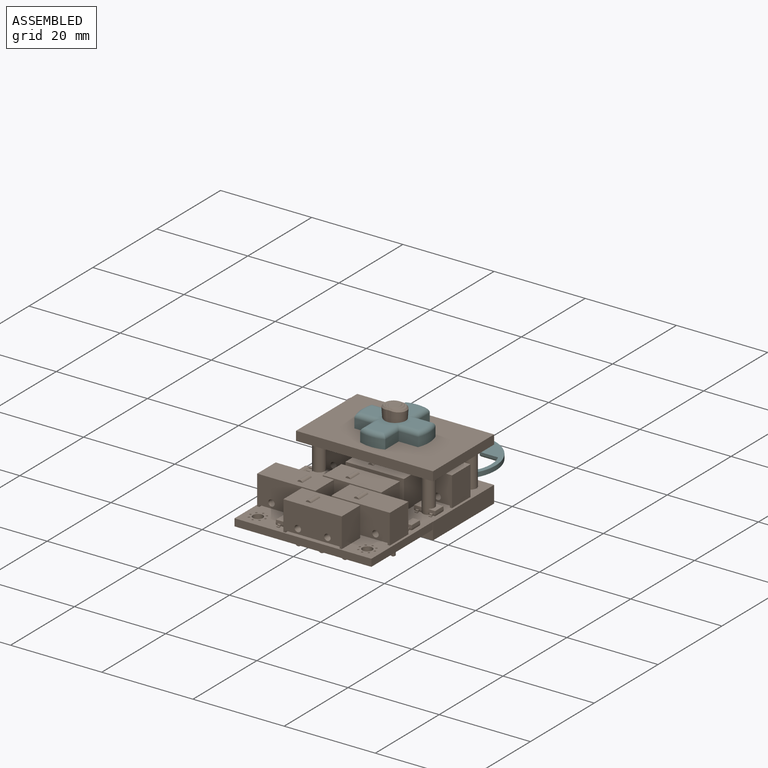
[diagram: assembled view]
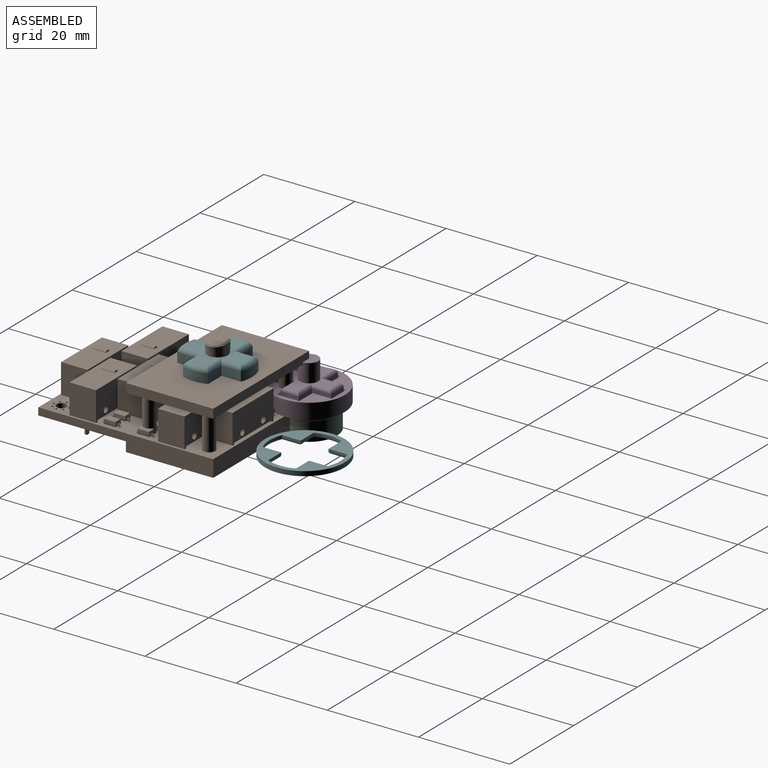
[diagram: assembled view, second angle]
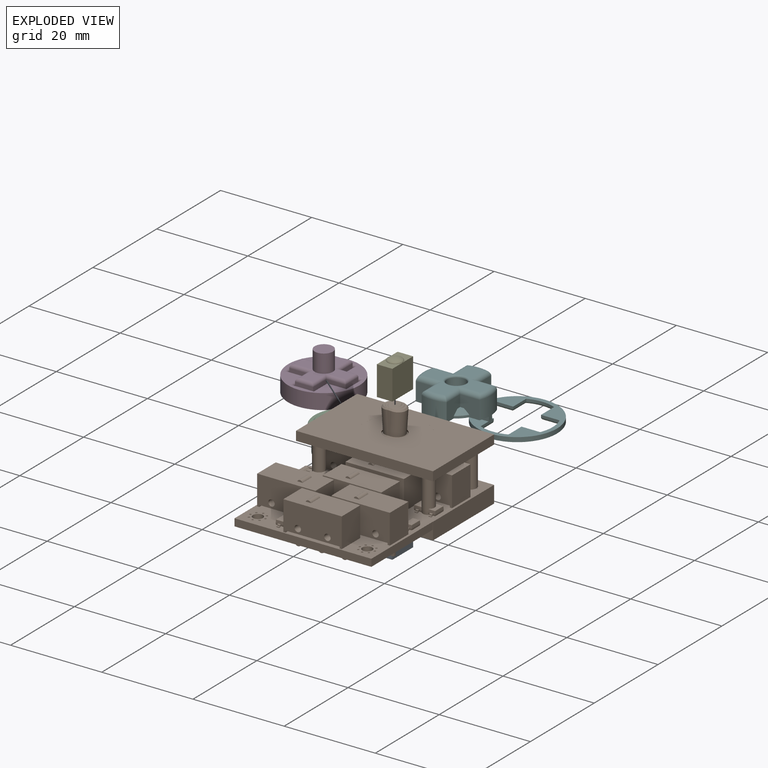
[diagram: exploded view]
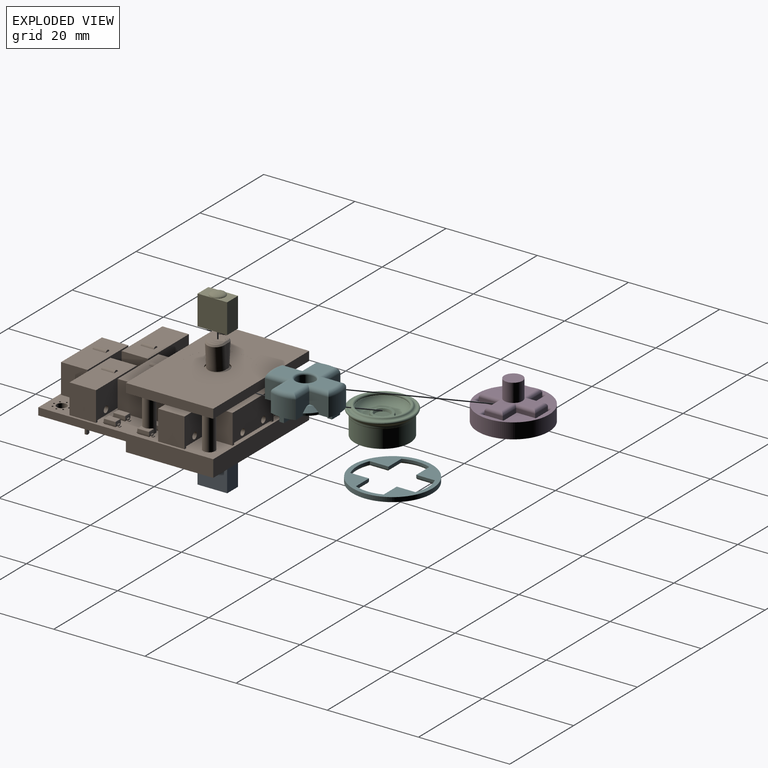
[diagram: exploded view, second angle]
FCSTD DOCUMENT  (FreeCAD 1.0RUnknown)
Label: caps
License: All rights reserved
LicenseURL: https://en.wikipedia.org/wiki/All_rights_reserved
objects: Sketcher::SketchObject×33, PartDesign::Pad×18, App::Link×13, PartDesign::Body×12, App::Part×12, PartDesign::Fillet×7, PartDesign::Pocket×6, PartDesign::Plane×5, PartDesign::SubShapeBinder×5, PartDesign::Chamfer×4, Part::Sphere×3, PartDesign::Revolution×2, Part::Cut×2, PartDesign::ShapeBinder×2, Part::Feature×2, PartDesign::AdditiveLoft×1, PartDesign::SubtractiveLoft×1, Part::Ellipsoid×1, PartDesign::FeatureBase×1
note: 217 computed .brp shape members not serialized (recipe doc carries the construction recipe); baked Part::Feature solids carry a one-line shape summary decoded from their .brp
EXTERNAL_REF file=thumb-cluster.FCStd obj=Body002
EXTERNAL_REF file=thumb-cluster.FCStd obj=Board_58ce
EXTERNAL_REF file=vars.FCStd obj=VarSet

FEATURE [Sketcher::SketchObject] Sketch001
  ArcFitTolerance = 1e-06
  FullyConstrained = false
  MakeInternals = false
  MapMode = 5
  Placement = pos=(0,0,0) rot=(1,0,0;1.5708rad)
  sketch-geometry (14):
    g0: LineSegment StartX=1.69043 StartY=8 StartZ=0 EndX=0 EndY=8 EndZ=0
    g1: GeomPoint [constr] X=2 Y=1.6 Z=0
    g2: ArcOfCircle [constr] CenterX=1.69043 CenterY=7.6871 CenterZ=0 NormalX=0 NormalY=0 NormalZ=1 AngleXU=0 Radius=0.312896 StartAngle=6.27442 EndAngle=7.85398
    g3: LineSegment StartX=2 StartY=7.65795 StartZ=0 EndX=1.69043 EndY=8 EndZ=0
    g4: LineSegment StartX=0 StartY=8 StartZ=0 EndX=0 EndY=1.2 EndZ=0
    g5: LineSegment StartX=2 StartY=7.65795 StartZ=0 EndX=2 EndY=2.62488 EndZ=0
    g6: LineSegment StartX=5.72458 StartY=1 StartZ=0 EndX=3.14484 EndY=1 EndZ=0
    g7: ArcOfCircle CenterX=0 CenterY=0 CenterZ=0 NormalX=0 NormalY=0 NormalZ=1 AngleXU=0 Radius=3.3 StartAngle=0.307871 EndAngle=0.919698
    g8: LineSegment StartX=6.7 StartY=0.024579 StartZ=0 EndX=6.7 EndY=-1e-16 EndZ=0
    g9: ArcOfCircle CenterX=5.72458 CenterY=0.024579 CenterZ=0 NormalX=0 NormalY=0 NormalZ=1 AngleXU=0 Radius=0.975421 StartAngle=0 EndAngle=1.5708
    g10: GeomPoint [constr] X=6.7 Y=1 Z=0
    g11: LineSegment StartX=6.7 StartY=-1e-16 StartZ=0 EndX=1.2 EndY=-1e-16 EndZ=0
    g12: ArcOfCircle CenterX=0 CenterY=-1e-16 CenterZ=0 NormalX=0 NormalY=0 NormalZ=1 AngleXU=0 Radius=1.2 StartAngle=0 EndAngle=1.5708
    g13: LineSegment [constr] StartX=1.2 StartY=-1e-16 StartZ=0 EndX=0 EndY=-1e-16 EndZ=0
  constraints (32):
    c: PointOnObject(g0,g-2)
    c: Horizontal(g0)
    c: Distance(g0,g-1) = 8
    c: Tangent(g0,g2) = -1.5708
    c: Coincident(g3,g0)
    c: Coincident(g0,g4)
    c: Vertical(g4)
    c: Distance(g8,g-2) = 6.7
    c: Coincident(g5,g3)
    c: Vertical(g5)
    c: Horizontal(g6)
    c: Coincident(g7,g5)
    c: Coincident(g7,g6)
    c: Radius(g7) = 3.3
    c: Distance(g4,g5) = 2
    c: Vertical(g8)
    c: PointOnObject(g10,g6)
    c: PointOnObject(g10,g8)
    c: Tangent(g6,g9) = -1.5708
    c: Tangent(g8,g9) = 1.5708
    c: Coincident(g11,g8)
    c: PointOnObject(g12,g-2)
    c: Horizontal(g11)
    c: Radius(g12) = 1.2
    c: Distance(g6,g-1) = 1
    c: Distance(g11,g6) = 1
    c: Coincident(g4,g12)
    c: Coincident(g11,g12)
    c: Coincident(g13,g11)
    c: Coincident(g13,g12)
    c: Horizontal(g13)
    c: Coincident(g7,g-1)
FEATURE [PartDesign::Revolution] Revolution
  Angle = 360
  Angle2 = 60
  Axis = (0,2e-16,1)
  Base = (0,0,0)
  Placement = pos=(0,0,0) rot=(1,0,0;1.5708rad)
  Profile = -> Sketch001
  ReferenceAxis = -> Sketch001 [V_Axis]
  Refine = true
  Reversed = true
  Suppressed = false
  Type = 0
FEATURE [Sketcher::SketchObject] Sketch002
  ArcFitTolerance = 1e-06
  AttachmentSupport = -> [XZ_Plane006]
  FullyConstrained = true
  MakeInternals = false
  MapMode = 5
  Placement = pos=(0,0,0) rot=(1,0,0;1.5708rad)
  sketch-geometry (4):
    g0: LineSegment StartX=3.16228 StartY=1.5 StartZ=0 EndX=7 EndY=1.5 EndZ=0
    g1: ArcOfCircle CenterX=0 CenterY=0 CenterZ=0 NormalX=0 NormalY=0 NormalZ=1 AngleXU=0 Radius=3.5 StartAngle=0.442911 EndAngle=0.795603
    g2: LineSegment StartX=7 StartY=2.5 StartZ=0 EndX=7 EndY=1.5 EndZ=0
    g3: LineSegment StartX=7 StartY=2.5 StartZ=0 EndX=2.44949 EndY=2.5 EndZ=0
  constraints (12):
    c: Distance(g2,g-2) = 7
    c: Coincident(g1,g-1)
    c: Radius(g1) = 3.5
    c: Coincident(g2,g0)
    c: Vertical(g2)
    c: DistanceY(g2,g2) = 1
    c: Horizontal(g0)
    c: Distance(g-1,g0) = 1.5
    c: Coincident(g3,g2)
    c: Horizontal(g3)
    c: Coincident(g3,g1)
    c: Coincident(g1,g0)
FEATURE [PartDesign::Revolution] Revolution001
  Angle = 360
  Angle2 = 60
  Axis = (0,2e-16,1)
  Base = (0,0,0)
  Placement = pos=(0,0,0) rot=(1,0,0;1.5708rad)
  Profile = -> Sketch002
  ReferenceAxis = -> Sketch002 [V_Axis]
  Refine = true
  Reversed = true
  Suppressed = false
  Type = 0
FEATURE [Sketcher::SketchObject] Sketch
  ArcFitTolerance = 1e-06
  AttachmentSupport = -> [XY_Plane]
  FullyConstrained = true
  MakeInternals = false
  MapMode = 5
  sketch-geometry (1):
    g0: Circle CenterX=0 CenterY=0 CenterZ=0 NormalX=0 NormalY=0 NormalZ=1 AngleXU=0 Radius=5.85
  constraints (2):
    c: Diameter(g0) = 11.7
    c: Coincident(g0,g-1)
FEATURE [PartDesign::Pad] Pad
  Direction = (0,0,1)
  Length = 3.5
  Length2 = 10
  Profile = -> Sketch
  ReferenceAxis = -> Sketch [N_Axis]
  Refine = true
  Suppressed = false
  Type = 0
FEATURE [Sketcher::SketchObject] Sketch003
  ArcFitTolerance = 1e-06
  AttachmentSupport = -> [Pad]
  FullyConstrained = true
  MakeInternals = false
  MapMode = 5
  Placement = pos=(0,0,3.5) rot=(0,0,1;0rad)
  sketch-geometry (1):
    g0: Circle CenterX=0 CenterY=0 CenterZ=0 NormalX=0 NormalY=0 NormalZ=1 AngleXU=0 Radius=4.35
  constraints (2):
    c: Diameter(g0) = 8.7
    c: Coincident(g0,g-1)
FEATURE [PartDesign::Plane] DatumPlane
  AttachmentOffset = pos=(0,0,1.3) rot=(0,0,1;0rad)
  AttachmentSupport = -> [Pad]
  Length = 60
  MapMode = 5
  Placement = pos=(0,0,4.8) rot=(0,0,1;0rad)
  ResizeMode = 0
  Width = 60
FEATURE [Sketcher::SketchObject] Sketch004
  ArcFitTolerance = 1e-06
  AttachmentSupport = -> [DatumPlane]
  FullyConstrained = true
  MakeInternals = false
  MapMode = 5
  Placement = pos=(0,0,4.8) rot=(0,0,1;0rad)
  sketch-geometry (1):
    g0: Circle CenterX=0 CenterY=0 CenterZ=0 NormalX=0 NormalY=0 NormalZ=1 AngleXU=0 Radius=5.35
  constraints (2):
    c: Diameter(g0) = 10.7
    c: Coincident(g0,g-1)
FEATURE [PartDesign::AdditiveLoft] AdditiveLoft
  BaseFeature = -> Pad
  Closed = false
  Profile = -> Sketch003
  Refine = true
  Ruled = false
  Sections = -> [Sketch004]
  Suppressed = false
FEATURE [Sketcher::SketchObject] Sketch005
  ArcFitTolerance = 1e-06
  AttachmentSupport = -> [AdditiveLoft]
  FullyConstrained = true
  MakeInternals = false
  MapMode = 5
  Placement = pos=(0,0,4.8) rot=(0,0,1;0rad)
  sketch-geometry (1):
    g0: Circle CenterX=0 CenterY=0 CenterZ=0 NormalX=0 NormalY=0 NormalZ=1 AngleXU=0 Radius=4.85
  constraints (2):
    c: Diameter(g0) = 9.7
    c: Coincident(g0,g-1)
FEATURE [Sketcher::SketchObject] Sketch006
  ArcFitTolerance = 1e-06
  AttachmentSupport = -> [AdditiveLoft]
  FullyConstrained = true
  MakeInternals = false
  MapMode = 5
  Placement = pos=(0,0,3.5) rot=(0,0,1;0rad)
  sketch-geometry (1):
    g0: Circle CenterX=0 CenterY=0 CenterZ=0 NormalX=0 NormalY=0 NormalZ=1 AngleXU=0 Radius=3.85
  constraints (2):
    c: Diameter(g0) = 7.7
    c: Coincident(g0,g-1)
FEATURE [PartDesign::SubtractiveLoft] SubtractiveLoft
  BaseFeature = -> AdditiveLoft
  Closed = false
  Profile = -> Sketch006
  Refine = true
  Ruled = false
  Sections = -> [Sketch005]
  Suppressed = false
FEATURE [Sketcher::SketchObject] Sketch007
  ArcFitTolerance = 1e-06
  AttachmentSupport = -> [SubtractiveLoft]
  FullyConstrained = true
  MakeInternals = false
  MapMode = 5
  Placement = pos=(0,0,0) rot=(1,0,0;3.14159rad)
  sketch-geometry (1):
    g0: Circle CenterX=0 CenterY=0 CenterZ=0 NormalX=0 NormalY=0 NormalZ=1 AngleXU=0 Radius=2.05
  constraints (2):
    c: Diameter(g0) = 4.1
    c: Coincident(g0,g-1)
FEATURE [PartDesign::Pocket] Pocket
  BaseFeature = -> SubtractiveLoft
  Direction = (0,0,1)
  Length = 3
  Length2 = 5
  Profile = -> Sketch007
  ReferenceAxis = -> Sketch007 [N_Axis]
  Refine = true
  Suppressed = false
  Type = 0
FEATURE [PartDesign::Fillet] Fillet
  Base = -> Pocket [Edge11]
  BaseFeature = -> Pocket
  Radius = 1
  Refine = true
  SupportTransform = false
  Suppressed = false
  UseAllEdges = false
FEATURE [PartDesign::Chamfer] Chamfer
  Angle = 45
  Base = -> Fillet [Edge6]
  BaseFeature = -> Fillet
  ChamferType = 2
  FlipDirection = false
  Refine = true
  Size = 0.3
  Size2 = 1
  SupportTransform = false
  Suppressed = false
  UseAllEdges = false
FEATURE [PartDesign::Chamfer] Chamfer001
  Angle = 45
  Base = -> Chamfer [Edge13]
  BaseFeature = -> Chamfer
  ChamferType = 1
  FlipDirection = false
  Refine = true
  Size = 3
  Size2 = 2
  SupportTransform = false
  Suppressed = false
  UseAllEdges = false
FEATURE [PartDesign::Chamfer] Chamfer002
  Angle = 45
  Base = -> Chamfer001 [Edge7]
  BaseFeature = -> Chamfer001
  ChamferType = 0
  FlipDirection = false
  Refine = true
  Size = 0.4
  Size2 = 1
  SupportTransform = false
  Suppressed = false
  UseAllEdges = false
FEATURE [PartDesign::Body] Body  label="cap"
  AllowCompound = false
  Group = -> [Sketch,Pad,Sketch003,DatumPlane,Sketch004,AdditiveLoft,Sketch005,Sketch006,SubtractiveLoft,Sketch007,Pocket,Fillet,Chamfer,Chamfer001,Chamfer002]
  Origin = -> Origin
  Placement = pos=(0,0,5) rot=(0,0,1;0rad)
  Tip = -> Chamfer002
FEATURE [App::Link] Link  label="test-base"
  LinkedObject = -> <external thumb-cluster.FCStd>#Body002
FEATURE [App::Link] Link001  label="thumb-cluster"
  LinkedObject = -> <external thumb-cluster.FCStd>#Board_58ce
FEATURE [PartDesign::SubShapeBinder] Binder
  BindCopyOnChange = 0
  BindMode = 0
  ClaimChildren = false
  Context = -> Part [Part004.Body003.Binder.]
  Fuse = false
  MakeFace = true
  OffsetFill = false
  OffsetIntersection = false
  OffsetJoinType = 0
  OffsetOpenResult = false
  PartialLoad = false
  Refine = true
  Relative = true
  Support = -> [Link[Pocket003.Face26,Pocket003.Face27,Pocket003.Face25,Pocket003.Face24]]
  _Version = 2
FEATURE [Sketcher::SketchObject] Sketch008
  ArcFitTolerance = 1e-06
  AttachmentSupport = -> [Binder]
  ExternalGeometry = -> [Binder]
  FullyConstrained = true
  MakeInternals = false
  MapMode = 5
  Placement = pos=(0,0,-2.5) rot=(0,0,1;0rad)
  sketch-geometry (4):
    g0: Circle CenterX=2.98327 CenterY=-3.01673 CenterZ=0 NormalX=0 NormalY=0 NormalZ=1 AngleXU=0 Radius=1.3
    g1: Circle CenterX=27 CenterY=-3.01673 CenterZ=0 NormalX=0 NormalY=0 NormalZ=1 AngleXU=0 Radius=1.3
    g2: Circle CenterX=27 CenterY=-16.15 CenterZ=0 NormalX=0 NormalY=0 NormalZ=1 AngleXU=0 Radius=1.3
    g3: Circle CenterX=2.98327 CenterY=-16.15 CenterZ=0 NormalX=0 NormalY=0 NormalZ=1 AngleXU=0 Radius=1.3
  constraints (8):
    c: Coincident(g0,g-3)
    c: Diameter(g0) = 2.6
    c: Coincident(g1,g-4)
    c: Coincident(g2,g-5)
    c: Coincident(g3,g-6)
    c: Equal(g0,g1)
    c: Equal(g1,g2)
    c: Equal(g2,g3)
FEATURE [PartDesign::Pad] Pad001
  Direction = (0,0,1)
  Length = 2.5
  Length2 = 10
  Profile = -> Sketch008
  ReferenceAxis = -> Sketch008 [N_Axis]
  Refine = true
  Suppressed = false
  Type = 0
FEATURE [PartDesign::Pad] Pad002
  BaseFeature = -> Pad001
  Direction = (0,0,1)
  Length = 10.003
  Length2 = 10
  Profile = -> Pad001 [Face6,Face3,Face9,Face12]
  Refine = true
  Suppressed = false
  Type = 0
  expr: Length = <<vars>>#VarSet.Base_recess_height
FEATURE [PartDesign::SubShapeBinder] Binder001
  BindCopyOnChange = 0
  BindMode = 0
  ClaimChildren = false
  Context = -> Part [Part004.Body003.Binder001.]
  Fuse = false
  MakeFace = true
  OffsetFill = false
  OffsetIntersection = false
  OffsetJoinType = 0
  OffsetOpenResult = false
  PartialLoad = false
  Refine = true
  Relative = true
  Support = -> [Link[Pocket003.Edge6,Pocket003.Edge9]]
  _Version = 2
FEATURE [Sketcher::SketchObject] Sketch009
  ArcFitTolerance = 1e-06
  AttachmentSupport = -> [Pad002]
  ExternalGeometry = -> [Binder001]
  FullyConstrained = true
  MakeInternals = false
  MapMode = 5
  Placement = pos=(0,0,10.003) rot=(0,0,1;0rad)
  sketch-geometry (4):
    g0: LineSegment StartX=0 StartY=0 StartZ=0 EndX=0 EndY=-19.15 EndZ=0
    g1: LineSegment StartX=0 StartY=-19.15 StartZ=0 EndX=30.0509 EndY=-19.15 EndZ=0
    g2: LineSegment StartX=30.0509 StartY=-19.15 StartZ=0 EndX=30.0509 EndY=0 EndZ=0
    g3: LineSegment StartX=30.0509 StartY=0 StartZ=0 EndX=0 EndY=0 EndZ=0
  constraints (10):
    c: Coincident(g0,g1)
    c: Coincident(g1,g2)
    c: Coincident(g2,g3)
    c: Coincident(g3,g0)
    c: Vertical(g0)
    c: Vertical(g2)
    c: Horizontal(g1)
    c: Horizontal(g3)
    c: Coincident(g0,g-1)
    c: Coincident(g1,g-4)
FEATURE [PartDesign::Pad] Pad003
  BaseFeature = -> Pad002
  Direction = (0,0,1)
  Length = 2
  Length2 = 10
  Profile = -> Sketch009
  ReferenceAxis = -> Sketch009 [N_Axis]
  Refine = true
  Reversed = true
  Suppressed = false
  Type = 0
FEATURE [PartDesign::SubShapeBinder] Binder002
  BindCopyOnChange = 0
  BindMode = 0
  ClaimChildren = false
  Context = -> Part [Part004.Body003.Binder002.]
  Fuse = false
  MakeFace = true
  OffsetFill = false
  OffsetIntersection = false
  OffsetJoinType = 0
  OffsetOpenResult = false
  PartialLoad = false
  Refine = true
  Relative = true
  Support = -> [Link[Pocket003.Edge20]]
  _Version = 2
FEATURE [Sketcher::SketchObject] Sketch010
  ArcFitTolerance = 1e-06
  AttacherType = Attacher::AttachEngine3D
  AttachmentSupport = -> [Pad003]
  ExternalGeometry = -> [Binder002]
  FullyConstrained = true
  MakeInternals = false
  MapMode = 5
  Placement = pos=(0,0,10.003) rot=(0,0,1;0rad)
  sketch-geometry (2):
    g0: Circle CenterX=14.98 CenterY=-9.55 CenterZ=0 NormalX=0 NormalY=0 NormalZ=1 AngleXU=0 Radius=6.95
    g1: GeomPoint X=14.98 Y=-9.55 Z=0
  constraints (3):
    c: Diameter(g0) = 13.9
    c: Coincident(g0,g-3)
    c: Coincident(g1,g0)
FEATURE [PartDesign::Pocket] Pocket001
  BaseFeature = -> Pad003
  Direction = (0,0,-1)
  Length = 5
  Length2 = 5
  Profile = -> Sketch010
  ReferenceAxis = -> Sketch010 [N_Axis]
  Refine = true
  Suppressed = false
  Type = 0
FEATURE [PartDesign::Body] Body003  label="top"
  AllowCompound = true
  Group = -> [Binder,Sketch008,Pad001,Pad002,Binder001,Sketch009,Pad003,Binder002,Sketch010,Pocket001]
  Origin = -> Origin010
  Tip = -> Pocket001
FEATURE [App::Link] Link002  label="stick-recess001"
  LinkPlacement = pos=(14.98,-9.55,7.5) rot=(0,0,1;0rad)
  LinkedObject = -> Body002
  Placement = pos=(14.98,-9.55,7.5) rot=(0,0,1;0rad)
  expr: .Placement.Base.z = <<vars>>#VarSet.Base_cap_height
FEATURE [App::Link] Link003  label="top001"
  LinkedObject = -> Body003
FEATURE [App::Part] Part005  label="top-stick"
  Group = -> [Link002,Link003]
  Origin = -> Origin012
FEATURE [Sketcher::SketchObject] Sketch013
  ArcFitTolerance = 1e-06
  AttachmentSupport = -> [XY_Plane016]
  FullyConstrained = true
  MakeInternals = false
  MapMode = 5
  sketch-geometry (2):
    g0: Circle CenterX=0 CenterY=0 CenterZ=0 NormalX=0 NormalY=0 NormalZ=1 AngleXU=0 Radius=7
    g1: Circle CenterX=0 CenterY=0 CenterZ=0 NormalX=0 NormalY=0 NormalZ=1 AngleXU=0 Radius=7.83
  constraints (4):
    c: Diameter(g0) = 14
    c: Coincident(g0,g-1)
    c: Diameter(g1) = 15.66
    c: Coincident(g1,g0)
FEATURE [PartDesign::Pad] Pad005
  Direction = (0,0,1)
  Length = 3.37
  Length2 = 10
  Profile = -> Sketch013
  ReferenceAxis = -> Sketch013 [N_Axis]
  Refine = true
  Suppressed = false
  Type = 0
FEATURE [Sketcher::SketchObject] Sketch015
  ArcFitTolerance = 1e-06
  AttachmentSupport = -> [Pad005]
  ExternalGeometry = -> [Pad005]
  FullyConstrained = false
  MakeInternals = false
  MapMode = 5
  Placement = pos=(0,0,3.37) rot=(0,0,1;0rad)
  sketch-geometry (1):
    g0: Circle CenterX=0 CenterY=0 CenterZ=0 NormalX=0 NormalY=0 NormalZ=1 AngleXU=0 Radius=7
  constraints (1):
    c: Coincident(g0,g-1)
FEATURE [PartDesign::Pad] Pad007
  BaseFeature = -> Pad005
  Direction = (0,0,1)
  Length = 1
  Length2 = 10
  Profile = -> Sketch015
  ReferenceAxis = -> Sketch015 [N_Axis]
  Refine = true
  Reversed = true
  Suppressed = false
  Type = 0
FEATURE [PartDesign::SubShapeBinder] Binder003
  BindCopyOnChange = 0
  BindMode = 0
  ClaimChildren = false
  Context = -> Part006 [Body005.Binder003.]
  Fuse = false
  MakeFace = true
  OffsetFill = false
  OffsetIntersection = false
  OffsetJoinType = 0
  OffsetOpenResult = false
  PartialLoad = false
  Refine = true
  Relative = true
  Support = -> [Body004[Pad006.Face23]]
  _Version = 2
FEATURE [Sketcher::SketchObject] Sketch016
  ArcFitTolerance = 1e-06
  AttachmentSupport = -> [Pad007]
  ExternalGeometry = -> [Binder003]
  FullyConstrained = true
  MakeInternals = false
  MapMode = 5
  Placement = pos=(0,0,3.37) rot=(0,0,1;0rad)
  sketch-geometry (12):
    g0: LineSegment StartX=-2.3 StartY=2.3 StartZ=0 EndX=-2.3 EndY=6.48466 EndZ=0
    g1: LineSegment StartX=-2.3 StartY=6.48466 StartZ=0 EndX=2.3 EndY=6.48466 EndZ=0
    g2: LineSegment StartX=2.3 StartY=6.48466 StartZ=0 EndX=2.3 EndY=2.3 EndZ=0
    g3: LineSegment StartX=2.3 StartY=2.3 StartZ=0 EndX=6.48466 EndY=2.3 EndZ=0
    g4: LineSegment StartX=6.48466 StartY=2.3 StartZ=0 EndX=6.48466 EndY=-2.3 EndZ=0
    g5: LineSegment StartX=6.48466 StartY=-2.3 StartZ=0 EndX=2.3 EndY=-2.3 EndZ=0
    g6: LineSegment StartX=2.3 StartY=-2.3 StartZ=0 EndX=2.3 EndY=-6.48466 EndZ=0
    g7: LineSegment StartX=2.3 StartY=-6.48466 StartZ=0 EndX=-2.3 EndY=-6.48466 EndZ=0
    g8: LineSegment StartX=-2.3 StartY=-6.48466 StartZ=0 EndX=-2.3 EndY=-2.3 EndZ=0
    g9: LineSegment StartX=-2.3 StartY=-2.3 StartZ=0 EndX=-6.48466 EndY=-2.3 EndZ=0
    g10: LineSegment StartX=-6.48466 StartY=-2.3 StartZ=0 EndX=-6.48466 EndY=2.3 EndZ=0
    g11: LineSegment StartX=-6.48466 StartY=2.3 StartZ=0 EndX=-2.3 EndY=2.3 EndZ=0
  constraints (36):
    c: Vertical(g0)
    c: Coincident(g0,g1)
    c: Horizontal(g1)
    c: Coincident(g1,g2)
    c: Vertical(g2)
    c: Coincident(g2,g3)
    c: Horizontal(g3)
    c: Coincident(g3,g4)
    c: Vertical(g4)
    c: Coincident(g4,g5)
    c: Horizontal(g5)
    c: Coincident(g5,g6)
    c: Vertical(g6)
    c: Coincident(g6,g7)
    c: Horizontal(g7)
    c: Coincident(g7,g8)
    c: Vertical(g8)
    c: Coincident(g8,g9)
    c: Horizontal(g9)
    c: Coincident(g9,g10)
    c: Vertical(g10)
    c: Coincident(g10,g11)
    c: Coincident(g11,g0)
    c: Horizontal(g11)
    c: Distance(g-3,g0) = 0.3
    c: Distance(g-4,g1) = 0.3
    c: Distance(g2,g-5) = 0.3
    c: Distance(g3,g-6) = 0.3
    c: Distance(g4,g-7) = 0.3
    c: Distance(g5,g-8) = 0.3
    c: Distance(g-9,g6) = 0.3
    c: Distance(g7,g-10) = 0.3
    c: Distance(g-11,g8) = 0.3
    c: Distance(g-12,g9) = 0.3
    c: Distance(g10,g-13) = 0.3
    c: Distance(g-14,g11) = 0.3
FEATURE [PartDesign::Pocket] Pocket002
  BaseFeature = -> Pad007
  Direction = (0,0,-1)
  Length = 5
  Length2 = 5
  Profile = -> Sketch016
  ReferenceAxis = -> Sketch016 [N_Axis]
  Refine = true
  Suppressed = false
  Type = 1
FEATURE [Part::Sphere] Sphere
  Angle1 = -90
  Angle2 = 90
  Angle3 = 360
  AttacherType = Attacher::AttachEngine3D
  Placement = pos=(0,0,5.9) rot=(0,0,1;0rad)
  Radius = 2
FEATURE [PartDesign::Fillet] Fillet002
  Base = -> Pocket002 [Edge14,Edge15,Edge16,Edge5,Edge6,Edge7,Edge8,Edge9,Edge10,Edge11,Edge12,Edge13]
  BaseFeature = -> Pocket002
  Radius = 0.5
  Refine = true
  SupportTransform = false
  Suppressed = false
  UseAllEdges = false
FEATURE [App::Link] Link004  label="recess-dpad"
  LinkPlacement = pos=(14.98,-9.55,7.43) rot=(0,0,1;0rad)
  LinkedObject = -> Body005
  Placement = pos=(14.98,-9.55,7.43) rot=(0,0,1;0rad)
FEATURE [App::Link] Link005  label="top002"
  LinkedObject = -> Body003
FEATURE [App::Part] Part007  label="top-dpad"
  Group = -> [Link004,Link005]
  Origin = -> Origin016
FEATURE [Sketcher::SketchObject] Sketch017
  ArcFitTolerance = 1e-06
  AttachmentSupport = -> [Fillet002]
  FullyConstrained = true
  MakeInternals = false
  MapMode = 5
  Placement = pos=(0,0,3.37) rot=(0,0,1;0rad)
  sketch-geometry (1):
    g0: GeomPoint X=0 Y=0 Z=0
  constraints (1):
    c: Coincident(g0,g-1)
FEATURE [PartDesign::Body] Body005  label="recess"
  AllowCompound = false
  Group = -> [Sketch013,Pad005,Sketch015,Pad007,Sketch016,Binder003,Pocket002,Fillet002,Sketch017]
  Origin = -> Origin015
  Tip = -> Fillet002
FEATURE [Sketcher::SketchObject] Sketch018
  ArcFitTolerance = 1e-06
  AttachmentSupport = -> [XY_Plane018]
  FullyConstrained = false
  MakeInternals = false
  MapMode = 5
  sketch-geometry (4):
    g0: LineSegment StartX=13.2837 StartY=-6.29606 StartZ=0 EndX=13.2837 EndY=-12.7968 EndZ=0
    g1: LineSegment StartX=13.2837 StartY=-12.7968 StartZ=0 EndX=16.6847 EndY=-12.7968 EndZ=0
    g2: LineSegment StartX=16.6847 StartY=-12.7968 StartZ=0 EndX=16.6847 EndY=-6.29606 EndZ=0
    g3: LineSegment StartX=16.6847 StartY=-6.29606 StartZ=0 EndX=13.2837 EndY=-6.29606 EndZ=0
  constraints (8):
    c: Coincident(g0,g1)
    c: Coincident(g1,g2)
    c: Coincident(g2,g3)
    c: Coincident(g3,g0)
    c: Vertical(g0)
    c: Vertical(g2)
    c: Horizontal(g1)
    c: Horizontal(g3)
FEATURE [PartDesign::Pad] Pad008
  Direction = (0,0,1)
  Length = 6.5
  Length2 = 10
  Profile = -> Sketch018
  ReferenceAxis = -> Sketch018 [N_Axis]
  Refine = true
  Suppressed = false
  Type = 0
FEATURE [Part::Ellipsoid] Ellipsoid
  Angle1 = -90
  Angle2 = 90
  Angle3 = 360
  AttacherType = Attacher::AttachEngine3D
  Placement = pos=(14.9842,-9.5464,6.5) rot=(0,0,1;0rad)
  Radius1 = 0.6
  Radius2 = 1.65
  Radius3 = 1.65
FEATURE [Sketcher::SketchObject] Sketch019
  ArcFitTolerance = 1e-06
  AttachmentSupport = -> [Pad008]
  ExternalGeometry = -> [Pad008]
  FullyConstrained = true
  MakeInternals = false
  MapMode = 5
  Placement = pos=(0,0,6.5) rot=(0,0,1;0rad)
  sketch-geometry (2):
    g0: LineSegment [constr] StartX=14.9842 StartY=-6.29606 StartZ=0 EndX=14.9842 EndY=-12.7968 EndZ=0
    g1: GeomPoint X=14.9842 Y=-9.54642 Z=0
  constraints (3):
    c: Symmetric(g-3,g-3,g0)
    c: Symmetric(g-4,g-4,g0)
    c: Symmetric(g0,g0,g1)
FEATURE [PartDesign::Body] Body006  label="pivot-body"
  AllowCompound = false
  Group = -> [Sketch018,Pad008,Sketch019]
  Origin = -> Origin017
  Tip = -> Pad008
FEATURE [App::Part] Part008  label="pivot"
  Group = -> [Body006,Ellipsoid]
  Origin = -> Origin018
FEATURE [Sketcher::SketchObject] Sketch012
  ArcFitTolerance = 1e-06
  AttachmentSupport = -> [XY_Plane015]
  FullyConstrained = true
  MakeInternals = false
  MapMode = 5
  sketch-geometry (1):
    g0: Circle CenterX=0 CenterY=0 CenterZ=0 NormalX=0 NormalY=0 NormalZ=1 AngleXU=0 Radius=6.5
  constraints (2):
    c: Coincident(g0,g-1)
    c: Diameter(g0) = 13
FEATURE [PartDesign::Pad] Pad004
  Direction = (0,0,1)
  Length = 1.5
  Length2 = 10
  Profile = -> Sketch012
  ReferenceAxis = -> Sketch012 [N_Axis]
  Refine = true
  Suppressed = false
  Type = 0
FEATURE [Sketcher::SketchObject] Sketch014
  ArcFitTolerance = 1e-06
  AttachmentSupport = -> [Pad004]
  ExternalGeometry = -> [Pad004]
  FullyConstrained = true
  MakeInternals = false
  MapMode = 5
  Placement = pos=(0,0,1.5) rot=(0,0,1;0rad)
  sketch-geometry (12):
    g0: LineSegment StartX=-2 StartY=6.18466 StartZ=0 EndX=2 EndY=6.18466 EndZ=0
    g1: LineSegment StartX=2 StartY=6.18466 StartZ=0 EndX=2 EndY=2 EndZ=0
    g2: LineSegment StartX=2 StartY=2 StartZ=0 EndX=6.18466 EndY=2 EndZ=0
    g3: LineSegment StartX=6.18466 StartY=2 StartZ=0 EndX=6.18466 EndY=-2 EndZ=0
    g4: LineSegment StartX=6.18466 StartY=-2 StartZ=0 EndX=2 EndY=-2 EndZ=0
    g5: LineSegment StartX=2 StartY=-2 StartZ=0 EndX=2 EndY=-6.18466 EndZ=0
    g6: LineSegment StartX=2 StartY=-6.18466 StartZ=0 EndX=-2 EndY=-6.18466 EndZ=0
    g7: LineSegment StartX=-2 StartY=-6.18466 StartZ=0 EndX=-2 EndY=-2 EndZ=0
    g8: LineSegment StartX=-2 StartY=-2 StartZ=0 EndX=-6.18466 EndY=-2 EndZ=0
    g9: LineSegment StartX=-6.18466 StartY=-2 StartZ=0 EndX=-6.18466 EndY=2 EndZ=0
    g10: LineSegment StartX=-6.18466 StartY=2 StartZ=0 EndX=-2 EndY=2 EndZ=0
    g11: LineSegment StartX=-2 StartY=2 StartZ=0 EndX=-2 EndY=6.18466 EndZ=0
  constraints (36):
    c: PointOnObject(g0,g-3)
    c: PointOnObject(g0,g-3)
    c: Horizontal(g0)
    c: Coincident(g0,g1)
    c: Vertical(g1)
    c: Coincident(g1,g2)
    c: PointOnObject(g2,g-3)
    c: Horizontal(g2)
    c: Coincident(g2,g3)
    c: PointOnObject(g3,g-3)
    c: Vertical(g3)
    c: Coincident(g3,g4)
    c: Horizontal(g4)
    c: Coincident(g4,g5)
    c: PointOnObject(g5,g-3)
    c: Coincident(g5,g6)
    c: PointOnObject(g6,g-3)
    c: Horizontal(g6)
    c: Coincident(g6,g7)
    c: Vertical(g7)
    c: Coincident(g7,g8)
    c: PointOnObject(g8,g-3)
    c: Horizontal(g8)
    c: Coincident(g8,g9)
    c: PointOnObject(g9,g-3)
    c: Vertical(g9)
    c: Coincident(g9,g10)
    c: Horizontal(g10)
    c: Coincident(g10,g11)
    c: Coincident(g11,g0)
    c: Vertical(g11)
    c: Vertical(g5)
    c: DistanceX(g0,g0) = 4
    c: Equal(g3,g0)
    c: Equal(g0,g6)
    c: Equal(g6,g9)
FEATURE [PartDesign::Pad] Pad006
  BaseFeature = -> Pad004
  Direction = (0,0,1)
  Length = 3
  Length2 = 10
  Profile = -> Sketch014
  ReferenceAxis = -> Sketch014 [N_Axis]
  Refine = true
  Suppressed = false
  Type = 0
FEATURE [PartDesign::Fillet] Fillet001
  Base = -> Pad006 [Edge29,Edge32,Edge36,Edge35,Edge38,Edge42,Edge41,Edge44,Edge47,Edge46,Edge26,Edge30]
  BaseFeature = -> Pad006
  Radius = 0.7
  Refine = true
  SupportTransform = false
  Suppressed = false
  UseAllEdges = false
FEATURE [Sketcher::SketchObject] Sketch020
  ArcFitTolerance = 1e-06
  AttachmentSupport = -> [Fillet001]
  FullyConstrained = true
  MakeInternals = false
  MapMode = 5
  Placement = pos=(0,0,4.5) rot=(0,0,1;0rad)
  sketch-geometry (1):
    g0: Circle CenterX=0 CenterY=0 CenterZ=0 NormalX=0 NormalY=0 NormalZ=1 AngleXU=0 Radius=2
  constraints (2):
    c: Diameter(g0) = 4
    c: Coincident(g0,g-1)
FEATURE [PartDesign::Pad] Pad009
  BaseFeature = -> Fillet001
  Direction = (0,0,1)
  Length = 4
  Length2 = 10
  Profile = -> Sketch020
  ReferenceAxis = -> Sketch020 [N_Axis]
  Refine = true
  Suppressed = false
  Type = 0
FEATURE [PartDesign::Body] Body004  label="dpad001"
  AllowCompound = false
  Group = -> [Sketch012,Pad004,Sketch014,Pad006,Fillet001,Sketch020,Pad009]
  Origin = -> Origin014
  Tip = -> Pad009
FEATURE [Part::Cut] Cut  label="dpad002"
  Base = -> Body004
  Refine = true
  Tool = -> Sphere
FEATURE [App::Part] Part006  label="dpad"
  Group = -> [Body005,Body004,Sphere,Cut]
  Origin = -> Origin013
FEATURE [App::Link] Link006  label="stem001"
  LinkPlacement = pos=(14.98,-9.55,7.5) rot=(0,-1,0;0.069813rad)
  LinkedObject = -> Body001
  Placement = pos=(14.98,-9.55,7.5) rot=(0,-1,0;0.069813rad)
  expr: .Placement.Base.z = <<vars>>#VarSet.Base_cap_height
FEATURE [PartDesign::SubShapeBinder] Binder004
  BindCopyOnChange = 0
  BindMode = 0
  ClaimChildren = false
  Context = -> Part009 [Body007.Binder004.]
  Fuse = false
  MakeFace = true
  OffsetFill = false
  OffsetIntersection = false
  OffsetJoinType = 0
  OffsetOpenResult = false
  PartialLoad = false
  Refine = true
  Relative = true
  Support = -> [Link001[Step_Models_58ce.Top_58ce.SW2_D2FC_F_7N_60M_8f2af3d61e4a_ln_006.Part__Feature021.Face59,Step_Models_58ce.Top_58ce.SW2_D2FC_F_7N_60M_8f2af3d61e4a_ln_003.Part__Feature021.Face59,Step_Models_58ce.Top_58ce.SW2_D2FC_F_7N_60M_8f2af3d61e4a_ln_005.Part__Feature021.Face59,Step_Models_58ce.Top_58ce.SW2_D2FC_F_7N_60M_8f2af3d61e4a_ln_004.Part__Feature021.Face59,Board_Geoms_58ce.Pcb_58ce.Edge152]]
  _Version = 2
FEATURE [PartDesign::Plane] DatumPlane001
  AttachmentOffset = pos=(0,0,1.5) rot=(0,0,1;0rad)
  AttachmentSupport = -> [Binder004]
  Length = 60
  MapMode = 5
  Placement = pos=(-9e-16,0,7.99) rot=(0,0,1;0rad)
  ResizeMode = 0
  Width = 60
FEATURE [Sketcher::SketchObject] Sketch023
  ArcFitTolerance = 1e-06
  AttachmentSupport = -> [DatumPlane001]
  ExternalGeometry = -> [Binder004]
  FullyConstrained = false
  MakeInternals = false
  MapMode = 5
  Placement = pos=(-9e-16,0,7.99) rot=(0,0,1;0rad)
  sketch-geometry (18):
    g0: Circle [constr] CenterX=14.98 CenterY=-9.55 CenterZ=0 NormalX=0 NormalY=0 NormalZ=1 AngleXU=0 Radius=7.5
    g1: ArcOfCircle CenterX=14.98 CenterY=-9.55 CenterZ=0 NormalX=0 NormalY=0 NormalZ=1 AngleXU=0 Radius=7.5 StartAngle=2.76617 EndAngle=3.51702
    g2: LineSegment [constr] StartX=12.23 StartY=-12.3 StartZ=0 EndX=17.73 EndY=-12.3 EndZ=0
    g3: LineSegment [constr] StartX=17.73 StartY=-12.3 StartZ=0 EndX=17.73 EndY=-6.8 EndZ=0
    g4: LineSegment [constr] StartX=17.73 StartY=-6.8 StartZ=0 EndX=12.23 EndY=-6.8 EndZ=0
    g5: LineSegment [constr] StartX=12.23 StartY=-6.8 StartZ=0 EndX=12.23 EndY=-12.3 EndZ=0
    g6: GeomPoint [constr] X=14.98 Y=-9.55 Z=0
    g7: LineSegment StartX=8.00236 StartY=-6.8 StartZ=0 EndX=12.23 EndY=-6.8 EndZ=0
    g8: LineSegment StartX=12.23 StartY=-6.8 StartZ=0 EndX=12.23 EndY=-2.57236 EndZ=0
    g9: LineSegment StartX=17.73 StartY=-2.57236 StartZ=0 EndX=17.73 EndY=-6.8 EndZ=0
    g10: LineSegment StartX=17.73 StartY=-6.8 StartZ=0 EndX=21.9576 EndY=-6.8 EndZ=0
    g11: LineSegment StartX=21.9576 StartY=-12.3 StartZ=0 EndX=17.73 EndY=-12.3 EndZ=0
    g12: LineSegment StartX=17.73 StartY=-12.3 StartZ=0 EndX=17.73 EndY=-16.5276 EndZ=0
    g13: LineSegment StartX=12.23 StartY=-16.5276 StartZ=0 EndX=12.23 EndY=-12.3 EndZ=0
    g14: LineSegment StartX=12.23 StartY=-12.3 StartZ=0 EndX=8.00236 EndY=-12.3 EndZ=0
    g15: ArcOfCircle CenterX=14.98 CenterY=-9.55 CenterZ=0 NormalX=0 NormalY=0 NormalZ=1 AngleXU=0 Radius=7.5 StartAngle=1.19537 EndAngle=1.94622
    g16: ArcOfCircle CenterX=14.98 CenterY=-9.55 CenterZ=0 NormalX=0 NormalY=0 NormalZ=1 AngleXU=0 Radius=7.5 StartAngle=5.90776 EndAngle=6.65861
    g17: ArcOfCircle CenterX=14.98 CenterY=-9.55 CenterZ=0 NormalX=0 NormalY=0 NormalZ=1 AngleXU=0 Radius=7.5 StartAngle=4.33697 EndAngle=5.08781
  constraints (48):
    c: Diameter(g0) = 15
    c: Coincident(g0,g-3)
    c: Coincident(g1,g0)
    c: Equal(g1,g0)
    c: Coincident(g2,g3)
    c: Coincident(g3,g4)
    c: Coincident(g4,g5)
    c: Coincident(g5,g2)
    c: Horizontal(g2)
    c: Horizontal(g4)
    c: Vertical(g3)
    c: Vertical(g5)
    c: Symmetric(g4,g2,g6)
    c: Distance(g3,g5) = 5.5
    c: Distance(g2,g4) = 5.5
    c: Coincident(g6,g0)
    c: Coincident(g7,g4)
    c: Horizontal(g7)
    c: Coincident(g7,g8)
    c: Vertical(g8)
    c: PointOnObject(g9,g15)
    c: Coincident(g9,g3)
    c: Coincident(g9,g10)
    c: Horizontal(g10)
    c: PointOnObject(g11,g16)
    c: Coincident(g11,g2)
    c: Horizontal(g11)
    c: Coincident(g11,g12)
    c: Vertical(g12)
    c: PointOnObject(g13,g17)
    c: Coincident(g13,g2)
    c: Vertical(g13)
    c: Coincident(g13,g14)
    c: Horizontal(g14)
    c: Coincident(g15,g8)
    c: Coincident(g1,g7)
    c: Equal(g1,g15)
    c: Coincident(g16,g10)
    c: PointOnObject(g15,g9)
    c: Coincident(g1,g15)
    c: Equal(g1,g16)
    c: Coincident(g17,g12)
    c: PointOnObject(g16,g11)
    c: Coincident(g1,g16)
    c: Equal(g1,g17)
    c: Coincident(g1,g14)
    c: PointOnObject(g17,g13)
    c: Coincident(g1,g17)
FEATURE [PartDesign::Pad] Pad010
  Direction = (0,0,1)
  Length = 5
  Length2 = 10
  Placement = pos=(-9e-16,1.4e-15,7.99) rot=(0,0,1;0rad)
  Profile = -> Sketch023
  ReferenceAxis = -> Sketch023 [N_Axis]
  Refine = true
  Suppressed = false
  Type = 0
FEATURE [Sketcher::SketchObject] Sketch024
  ArcFitTolerance = 1e-06
  AttachmentSupport = -> [Pad010]
  ExternalGeometry = -> [Binder004,Pad010]
  FullyConstrained = true
  MakeInternals = false
  MapMode = 5
  Placement = pos=(-9e-16,1.4e-15,7.99) rot=(1,0,0;3.14159rad)
  sketch-geometry (24):
    g0: LineSegment [constr] StartX=8.18 StartY=11 StartZ=0 EndX=9.38 EndY=8.1 EndZ=0
    g1: LineSegment [constr] StartX=14.38 StartY=4.8 StartZ=0 EndX=15.58 EndY=1.9 EndZ=0
    g2: LineSegment [constr] StartX=20.58 StartY=11 StartZ=0 EndX=21.78 EndY=8.1 EndZ=0
    g3: LineSegment [constr] StartX=14.38 StartY=17.2 StartZ=0 EndX=15.58 EndY=14.3 EndZ=0
    g4: LineSegment StartX=10.0633 StartY=9.05 StartZ=0 EndX=10.0633 EndY=10.05 EndZ=0
    g5: LineSegment StartX=10.0633 StartY=10.05 StartZ=0 EndX=7.49669 EndY=10.05 EndZ=0
    g6: LineSegment StartX=7.49669 StartY=10.05 StartZ=0 EndX=7.49669 EndY=9.05 EndZ=0
    g7: LineSegment StartX=7.49669 StartY=9.05 StartZ=0 EndX=10.0633 EndY=9.05 EndZ=0
    g8: GeomPoint [constr] X=8.78 Y=9.55 Z=0
    g9: LineSegment StartX=16.2633 StartY=15.25 StartZ=0 EndX=16.2633 EndY=16.25 EndZ=0
    g10: LineSegment StartX=16.2633 StartY=16.25 StartZ=0 EndX=13.6967 EndY=16.25 EndZ=0
    g11: LineSegment StartX=13.6967 StartY=16.25 StartZ=0 EndX=13.6967 EndY=15.25 EndZ=0
    g12: LineSegment StartX=13.6967 StartY=15.25 StartZ=0 EndX=16.2633 EndY=15.25 EndZ=0
    g13: GeomPoint [constr] X=14.98 Y=15.75 Z=0
    g14: LineSegment StartX=19.8967 StartY=10.05 StartZ=0 EndX=19.8967 EndY=9.05 EndZ=0
    g15: LineSegment StartX=19.8967 StartY=9.05 StartZ=0 EndX=22.4633 EndY=9.05 EndZ=0
    g16: LineSegment StartX=22.4633 StartY=9.05 StartZ=0 EndX=22.4633 EndY=10.05 EndZ=0
    g17: LineSegment StartX=22.4633 StartY=10.05 StartZ=0 EndX=19.8967 EndY=10.05 EndZ=0
    g18: GeomPoint [constr] X=21.18 Y=9.55 Z=0
    g19: LineSegment StartX=13.6967 StartY=2.85 StartZ=0 EndX=16.2633 EndY=2.85 EndZ=0
    g20: LineSegment StartX=16.2633 StartY=2.85 StartZ=0 EndX=16.2633 EndY=3.85 EndZ=0
    g21: LineSegment StartX=16.2633 StartY=3.85 StartZ=0 EndX=13.6967 EndY=3.85 EndZ=0
    g22: LineSegment StartX=13.6967 StartY=3.85 StartZ=0 EndX=13.6967 EndY=2.85 EndZ=0
    g23: GeomPoint [constr] X=14.98 Y=3.35 Z=0
  constraints (56):
    c: Coincident(g0,g-9)
    c: Coincident(g0,g-4)
    c: Coincident(g1,g-12)
    c: Coincident(g1,g-6)
    c: Coincident(g2,g-10)
    c: Coincident(g2,g-5)
    c: Coincident(g3,g-11)
    c: Coincident(g3,g-3)
    c: Coincident(g4,g5)
    c: Coincident(g5,g6)
    c: Coincident(g6,g7)
    c: Coincident(g7,g4)
    c: Vertical(g4)
    c: Vertical(g6)
    c: Horizontal(g5)
    c: Horizontal(g7)
    c: Symmetric(g6,g4,g8)
    c: Symmetric(g0,g0,g8)
    c: PointOnObject(g5,g-7)
    c: Coincident(g9,g10)
    c: Coincident(g10,g11)
    c: Coincident(g11,g12)
    c: Coincident(g12,g9)
    c: Vertical(g9)
    c: Vertical(g11)
    c: Horizontal(g10)
    c: Horizontal(g12)
    c: Symmetric(g11,g9,g13)
    c: Symmetric(g3,g3,g13)
    c: Coincident(g14,g15)
    c: Coincident(g15,g16)
    c: Coincident(g16,g17)
    c: Coincident(g17,g14)
    c: Vertical(g14)
    c: Vertical(g16)
    c: Horizontal(g15)
    c: Horizontal(g17)
    c: Symmetric(g16,g14,g18)
    c: Symmetric(g2,g2,g18)
    c: PointOnObject(g15,g-8)
    c: Coincident(g19,g20)
    c: Coincident(g20,g21)
    c: Coincident(g21,g22)
    c: Coincident(g22,g19)
    c: Horizontal(g19)
    c: Horizontal(g21)
    c: Vertical(g20)
    c: Vertical(g22)
    c: Symmetric(g21,g19,g23)
    c: Symmetric(g1,g1,g23)
    c: DistanceY(g4,g4) = 1
    c: Equal(g4,g20)
    c: Equal(g20,g14)
    c: Equal(g14,g9)
    c: Equal(g7,g21)
    c: Equal(g21,g12)
FEATURE [PartDesign::Pad] Pad011
  BaseFeature = -> Pad010
  Direction = (0,0,-1)
  Length = 1
  Length2 = 10
  Placement = pos=(-9e-16,1.4e-15,7.99) rot=(0,0,1;0rad)
  Profile = -> Sketch024
  ReferenceAxis = -> Sketch024 [N_Axis]
  Refine = true
  Suppressed = false
  Type = 0
FEATURE [PartDesign::Plane] DatumPlane002  label="DatumPlaneHole"
  AttachmentOffset = pos=(0,0,-1) rot=(0,0,1;0rad)
  Length = 60
  MapMode = 5
  Placement = pos=(-9e-16,1.4e-15,8.99) rot=(1,0,0;3.14159rad)
  ResizeMode = 0
  Width = 60
FEATURE [PartDesign::Plane] DatumPlane003  label="DatumPlaneRetainer"
  AttachmentSupport = -> [Pad011]
  Length = 60
  MapMode = 2
  Placement = pos=(-9e-16,1.4e-15,7.99) rot=(0,0,1;0rad)
  ResizeMode = 0
  Width = 60
FEATURE [Sketcher::SketchObject] Sketch026
  ArcFitTolerance = 1e-06
  AttachmentSupport = -> [DatumPlane003]
  ExternalGeometry = -> [Binder004]
  FullyConstrained = true
  MakeInternals = false
  MapMode = 5
  Placement = pos=(-9e-16,1.4e-15,7.99) rot=(0,0,1;0rad)
  sketch-geometry (1):
    g0: Circle CenterX=14.98 CenterY=-9.55 CenterZ=0 NormalX=0 NormalY=0 NormalZ=1 AngleXU=0 Radius=5.5
  constraints (2):
    c: Coincident(g0,g-3)
    c: Diameter(g0) = 11
FEATURE [PartDesign::Pad] Pad012
  BaseFeature = -> Pad011
  Direction = (0,0,1)
  Length = 1.5
  Length2 = 10
  Placement = pos=(-9e-16,1.4e-15,7.99) rot=(0,0,1;0rad)
  Profile = -> Sketch026
  ReferenceAxis = -> Sketch026 [N_Axis]
  Refine = true
  Suppressed = false
  Type = 0
FEATURE [Sketcher::SketchObject] Sketch027
  ArcFitTolerance = 1e-06
  AttachmentSupport = -> [Pad012]
  ExternalGeometry = -> [Binder004]
  FullyConstrained = true
  MakeInternals = false
  MapMode = 5
  Placement = pos=(-9e-16,1.4e-15,12.99) rot=(0,0,1;0rad)
  sketch-geometry (1):
    g0: Circle CenterX=14.98 CenterY=-9.55 CenterZ=0 NormalX=0 NormalY=0 NormalZ=1 AngleXU=0 Radius=2.05
  constraints (2):
    c: Diameter(g0) = 4.1
    c: Coincident(g0,g-3)
FEATURE [PartDesign::Pocket] Pocket003
  BaseFeature = -> Pad012
  Direction = (0,0,-1)
  Length = 0
  Length2 = 5
  Placement = pos=(-9e-16,1.4e-15,7.99) rot=(0,0,1;0rad)
  Profile = -> Sketch027
  ReferenceAxis = -> Sketch027 [N_Axis]
  Refine = true
  Suppressed = false
  Type = 3
  UpToFace = -> DatumPlane002
FEATURE [App::Link] Link007  label="top003"
  LinkedObject = -> Body003
FEATURE [PartDesign::ShapeBinder] ShapeBinder002
  Support = -> [Body003]
  TraceSupport = false
FEATURE [Sketcher::SketchObject] Sketch030
  ArcFitTolerance = 1e-06
  AttachmentSupport = -> [ShapeBinder002]
  FullyConstrained = true
  MakeInternals = false
  MapMode = 5
  Placement = pos=(0,0,-2.5) rot=(1,0,0;3.14159rad)
  sketch-geometry (1):
    g0: Circle CenterX=14.98 CenterY=-9.55 CenterZ=0 NormalX=0 NormalY=0 NormalZ=1 AngleXU=0 Radius=8.72
  constraints (2):
    c: Coincident(g0,g-3)
    c: Diameter(g0) = 17.44
FEATURE [PartDesign::Pad] Pad014
  Direction = (0,0,-1)
  Length = 1
  Length2 = 10
  Profile = -> Sketch030
  ReferenceAxis = -> Sketch030 [N_Axis]
  Refine = true
  Reversed = true
  Suppressed = false
  Type = 0
FEATURE [Sketcher::SketchObject] Sketch031
  ArcFitTolerance = 1e-06
  AttachmentSupport = -> [Pad014]
  ExternalGeometry = -> [Pad014]
  FullyConstrained = true
  MakeInternals = false
  MapMode = 5
  Placement = pos=(0,0,-2.5) rot=(1,0,0;3.14159rad)
  sketch-geometry (18):
    g0: Circle [constr] CenterX=14.98 CenterY=-9.55 CenterZ=0 NormalX=0 NormalY=0 NormalZ=1 AngleXU=0 Radius=7.75
    g1: LineSegment [constr] StartX=11.93 StartY=-12.6 StartZ=0 EndX=18.03 EndY=-12.6 EndZ=0
    g2: LineSegment [constr] StartX=18.03 StartY=-12.6 StartZ=0 EndX=18.03 EndY=-6.5 EndZ=0
    g3: LineSegment [constr] StartX=18.03 StartY=-6.5 StartZ=0 EndX=11.93 EndY=-6.5 EndZ=0
    g4: LineSegment [constr] StartX=11.93 StartY=-6.5 StartZ=0 EndX=11.93 EndY=-12.6 EndZ=0
    g5: GeomPoint [constr] X=14.98 Y=-9.55 Z=0
    g6: LineSegment StartX=11.93 StartY=-2.42539 StartZ=0 EndX=11.93 EndY=-6.5 EndZ=0
    g7: LineSegment StartX=11.93 StartY=-6.5 StartZ=0 EndX=7.85539 EndY=-6.5 EndZ=0
    g8: LineSegment StartX=7.85539 StartY=-12.6 StartZ=0 EndX=11.93 EndY=-12.6 EndZ=0
    g9: LineSegment StartX=11.93 StartY=-12.6 StartZ=0 EndX=11.93 EndY=-16.6746 EndZ=0
    g10: LineSegment StartX=18.03 StartY=-16.6746 StartZ=0 EndX=18.03 EndY=-12.6 EndZ=0
    g11: LineSegment StartX=18.03 StartY=-12.6 StartZ=0 EndX=22.1046 EndY=-12.6 EndZ=0
    g12: LineSegment StartX=22.1046 StartY=-6.5 StartZ=0 EndX=18.03 EndY=-6.5 EndZ=0
    g13: LineSegment StartX=18.03 StartY=-6.5 StartZ=0 EndX=18.03 EndY=-2.42539 EndZ=0
    g14: ArcOfCircle CenterX=14.98 CenterY=-9.55 CenterZ=0 NormalX=0 NormalY=0 NormalZ=1 AngleXU=0 Radius=7.75 StartAngle=1.16631 EndAngle=1.97528
    g15: ArcOfCircle CenterX=14.98 CenterY=-9.55 CenterZ=0 NormalX=0 NormalY=0 NormalZ=1 AngleXU=0 Radius=7.75 StartAngle=4.3079 EndAngle=5.11688
    g16: ArcOfCircle CenterX=14.98 CenterY=-9.55 CenterZ=0 NormalX=0 NormalY=0 NormalZ=1 AngleXU=0 Radius=7.75 StartAngle=2.7371 EndAngle=3.54608
    g17: ArcOfCircle CenterX=14.98 CenterY=-9.55 CenterZ=0 NormalX=0 NormalY=0 NormalZ=1 AngleXU=0 Radius=7.75 StartAngle=5.8787 EndAngle=6.68767
  constraints (52):
    c: Diameter(g0) = 15.5
    c: Coincident(g0,g-3)
    c: Coincident(g1,g2)
    c: Coincident(g2,g3)
    c: Coincident(g3,g4)
    c: Coincident(g4,g1)
    c: Horizontal(g1)
    c: Horizontal(g3)
    c: Vertical(g2)
    c: Vertical(g4)
    c: Symmetric(g3,g1,g5)
    c: Distance(g2,g4) = 6.1
    c: Coincident(g5,g0)
    c: Equal(g1,g2)
    c: PointOnObject(g6,g0)
    c: Coincident(g6,g3)
    c: Vertical(g6)
    c: Coincident(g6,g7)
    c: PointOnObject(g7,g0)
    c: Horizontal(g7)
    c: PointOnObject(g8,g0)
    c: Coincident(g8,g1)
    c: Horizontal(g8)
    c: Coincident(g8,g9)
    c: PointOnObject(g9,g0)
    c: Vertical(g9)
    c: PointOnObject(g10,g0)
    c: Coincident(g10,g1)
    c: Vertical(g10)
    c: Coincident(g10,g11)
    c: PointOnObject(g11,g0)
    c: Horizontal(g11)
    c: PointOnObject(g12,g0)
    c: Coincident(g12,g2)
    c: Horizontal(g12)
    c: Coincident(g12,g13)
    c: PointOnObject(g13,g0)
    c: Vertical(g13)
    c: Coincident(g14,g0)
    c: Coincident(g17,g12)
    c: Coincident(g14,g13)
    c: PointOnObject(g16,g8)
    c: PointOnObject(g15,g9)
    c: Coincident(g14,g15)
    c: Equal(g14,g16)
    c: PointOnObject(g14,g6)
    c: PointOnObject(g16,g7)
    c: Coincident(g14,g16)
    c: Equal(g15,g17)
    c: PointOnObject(g15,g10)
    c: PointOnObject(g17,g11)
    c: Coincident(g15,g17)
FEATURE [PartDesign::Pocket] Pocket005
  BaseFeature = -> Pad014
  Direction = (0,0,1)
  Length = 5
  Length2 = 5
  Profile = -> Sketch031
  ReferenceAxis = -> Sketch031 [N_Axis]
  Refine = true
  Suppressed = false
  Type = 1
FEATURE [App::Link] Link008  label="recess003"
  LinkedObject = -> Body009
FEATURE [App::Part] Part010  label="top-dstick"
  Group = -> [Link007,Link008]
  Origin = -> Origin022
FEATURE [PartDesign::Fillet] Fillet003
  Base = -> Pocket003 [Edge73,Edge71,Edge66,Edge55,Edge52,Edge46,Edge94,Edge93,Edge88,Edge84,Edge82,Edge77]
  BaseFeature = -> Pocket003
  Placement = pos=(-9e-16,1.4e-15,7.99) rot=(0,0,1;0rad)
  Radius = 1
  Refine = true
  SupportTransform = false
  Suppressed = false
  UseAllEdges = false
FEATURE [PartDesign::Fillet] Fillet004
  Base = -> Fillet003 [Edge64]
  BaseFeature = -> Fillet003
  Placement = pos=(-9e-16,1.4e-15,7.99) rot=(0,0,1;0rad)
  Radius = 0.4
  Refine = true
  SupportTransform = false
  Suppressed = false
  UseAllEdges = false
FEATURE [PartDesign::Fillet] Fillet005
  Base = -> Pocket005 [Edge8,Edge9,Edge10,Edge11,Edge12,Edge13,Edge14,Edge15,Edge5,Edge6,Edge7,Edge4]
  BaseFeature = -> Pocket005
  Radius = 0.5
  Refine = true
  SupportTransform = false
  Suppressed = false
  UseAllEdges = false
FEATURE [PartDesign::Body] Body009  label="recess2"
  AllowCompound = false
  Group = -> [ShapeBinder002,Sketch030,Pad014,Sketch031,Pocket005,Fillet005]
  Origin = -> Origin023
  Tip = -> Fillet005
FEATURE [Sketcher::SketchObject] Sketch032
  ArcFitTolerance = 1e-06
  AttachmentSupport = -> [XY_Plane026]
  FullyConstrained = true
  MakeInternals = false
  MapMode = 5
  sketch-geometry (1):
    g0: Circle CenterX=0 CenterY=0 CenterZ=0 NormalX=0 NormalY=0 NormalZ=1 AngleXU=0 Radius=2
  constraints (2):
    c: Diameter(g0) = 4
    c: Coincident(g0,g-1)
FEATURE [PartDesign::Pad] Pad015
  Direction = (0,0,1)
  Length = 8
  Length2 = 10
  Profile = -> Sketch032
  ReferenceAxis = -> Sketch032 [N_Axis]
  Refine = true
  Suppressed = false
  Type = 0
FEATURE [PartDesign::Body] Body011  label="stick001"
  AllowCompound = false
  Group = -> [Sketch032,Pad015]
  Origin = -> Origin025
  Tip = -> Pad015
FEATURE [PartDesign::Chamfer] Chamfer003
  Angle = 45
  Base = -> Fillet004 [Edge104,Edge105,Edge109,Edge108]
  BaseFeature = -> Fillet004
  ChamferType = 2
  FlipDirection = false
  Placement = pos=(-9e-16,1.4e-15,7.99) rot=(0,0,1;0rad)
  Refine = true
  Size = 1
  Size2 = 0.5
  SupportTransform = false
  Suppressed = false
  UseAllEdges = false
FEATURE [Sketcher::SketchObject] Sketch033
  ArcFitTolerance = 1e-06
  AttachmentSupport = -> [Chamfer003]
  ExternalGeometry = -> [Chamfer003]
  FullyConstrained = true
  MakeInternals = false
  MapMode = 5
  Placement = pos=(-9e-16,1.4e-15,7.99) rot=(1,0,0;3.14159rad)
  sketch-geometry (1):
    g0: Circle CenterX=14.98 CenterY=9.55 CenterZ=0 NormalX=0 NormalY=0 NormalZ=1 AngleXU=0 Radius=1
  constraints (2):
    c: Diameter(g0) = 2
    c: Coincident(g0,g-3)
FEATURE [PartDesign::Pad] Pad016
  BaseFeature = -> Chamfer003
  Direction = (0,0,-1)
  Length = 1.5
  Length2 = 10
  Placement = pos=(-9e-16,1.4e-15,7.99) rot=(0,0,1;0rad)
  Profile = -> Sketch033
  ReferenceAxis = -> Sketch033 [N_Axis]
  Refine = true
  Suppressed = false
  Type = 0
FEATURE [PartDesign::Fillet] Fillet006
  Base = -> Pad016 [Edge129]
  BaseFeature = -> Pad016
  Placement = pos=(-9e-16,1.4e-15,7.99) rot=(0,0,1;0rad)
  Radius = 1
  Refine = true
  SupportTransform = false
  Suppressed = false
  UseAllEdges = false
FEATURE [PartDesign::Body] Body007  label="pad"
  AllowCompound = false
  Group = -> [Binder004,DatumPlane001,Sketch023,Pad010,Sketch024,Pad011,DatumPlane003,DatumPlane002,Sketch026,Pad012,Sketch027,Pocket003,Sketch033,Fillet003,Fillet004,Chamfer003,Pad016,Fillet006]
  Origin = -> Origin020
  Tip = -> Fillet006
FEATURE [App::Part] Part009  label="dstick"
  Group = -> [Body007,Body009,Body011]
  Origin = -> Origin019
FEATURE [Sketcher::SketchObject] Sketch034
  ArcFitTolerance = 1e-06
  AttachmentSupport = -> [XY_Plane027]
  FullyConstrained = false
  MakeInternals = false
  MapMode = 5
  sketch-geometry (4):
    g0: LineSegment StartX=13.2837 StartY=-6.29606 StartZ=0 EndX=13.2837 EndY=-12.7968 EndZ=0
    g1: LineSegment StartX=13.2837 StartY=-12.7968 StartZ=0 EndX=16.6847 EndY=-12.7968 EndZ=0
    g2: LineSegment StartX=16.6847 StartY=-12.7968 StartZ=0 EndX=16.6847 EndY=-6.29606 EndZ=0
    g3: LineSegment StartX=16.6847 StartY=-6.29606 StartZ=0 EndX=13.2837 EndY=-6.29606 EndZ=0
  constraints (8):
    c: Coincident(g0,g1)
    c: Coincident(g1,g2)
    c: Coincident(g2,g3)
    c: Coincident(g3,g0)
    c: Vertical(g0)
    c: Vertical(g2)
    c: Horizontal(g1)
    c: Horizontal(g3)
FEATURE [PartDesign::Pad] Pad017
  Direction = (0,0,1)
  Length = 6.5
  Length2 = 10
  Profile = -> Sketch034
  ReferenceAxis = -> Sketch034 [N_Axis]
  Refine = true
  Suppressed = false
  Type = 0
FEATURE [Sketcher::SketchObject] Sketch035
  ArcFitTolerance = 1e-06
  AttachmentSupport = -> [Pad017]
  ExternalGeometry = -> [Pad017]
  FullyConstrained = true
  MakeInternals = false
  MapMode = 5
  Placement = pos=(0,0,6.5) rot=(0,0,1;0rad)
  sketch-geometry (2):
    g0: LineSegment [constr] StartX=14.9842 StartY=-6.29606 StartZ=0 EndX=14.9842 EndY=-12.7968 EndZ=0
    g1: GeomPoint X=14.9842 Y=-9.54642 Z=0
  constraints (3):
    c: Symmetric(g-3,g-3,g0)
    c: Symmetric(g-4,g-4,g0)
    c: Symmetric(g0,g0,g1)
FEATURE [PartDesign::Body] Body012  label="pivot-body001"
  AllowCompound = false
  Group = -> [Sketch034,Pad017,Sketch035]
  Origin = -> Origin026
  Tip = -> Pad017
FEATURE [Part::Sphere] Sphere002
  Angle1 = -90
  Angle2 = 90
  Angle3 = 360
  AttacherType = Attacher::AttachEngine3D
  Placement = pos=(14.98,-9.55,6.7) rot=(0,0,1;0rad)
  Radius = 1.2
FEATURE [Part::Cut] Cut002  label="pivot-bearing"
  Base = -> Body012
  Refine = true
  Tool = -> Sphere002
FEATURE [PartDesign::ShapeBinder] ShapeBinder
  Placement = pos=(0,0,0) rot=(1,0,0;1.5708rad)
  Support = -> [Revolution001]
  TraceSupport = false
FEATURE [PartDesign::Body] Body001  label="stem"
  AllowCompound = false
  Group = -> [Sketch001,Revolution,ShapeBinder]
  Origin = -> Origin005
  Tip = -> Revolution
FEATURE [App::Link] Link009  label="top-stick001"
  LinkPlacement = pos=(0,0,0) rot=(-0.008727,0.999962,0;3.14159rad)
  LinkedObject = -> Part005
  Placement = pos=(0,0,0) rot=(-0.008727,0.999962,0;3.14159rad)
FEATURE [App::Part] Part011  label="top-stick-print"
  Group = -> [Link009]
  Origin = -> Origin027
FEATURE [App::Link] Link010  label="stem002"
  LinkPlacement = pos=(14.98,-9.55,7.5) rot=(0,1,0;0.069813rad)
  LinkedObject = -> Body001
  Placement = pos=(14.98,-9.55,7.5) rot=(0,1,0;0.069813rad)
  expr: .Placement.Base.z = <<vars>>#VarSet.Base_cap_height
FEATURE [App::Link] Link011  label="stem003"
  LinkPlacement = pos=(14.98,-9.55,7.5) rot=(0,0,1;0rad)
  LinkedObject = -> Body001
  Placement = pos=(14.98,-9.55,7.5) rot=(0,0,1;0rad)
  expr: .Placement.Base.z = <<vars>>#VarSet.Base_cap_height
FEATURE [Part::Sphere] Sphere003  label="bearing"
  Angle1 = -90
  Angle2 = 90
  Angle3 = 360
  AttacherType = Attacher::AttachEngine3D
  Placement = pos=(14.98,-9.55,6.75) rot=(0,0,1;0rad)
  Radius = 1.25
FEATURE [App::Part] Part  label="tester"
  Group = -> [Link,Link001,Body003,Part005,Part007,Link006,Part010,Part011,Link010,Link011,Sphere003]
  Origin = -> Origin009
FEATURE [Sketcher::SketchObject] Sketch036  label="center"
  ArcFitTolerance = 1e-06
  AttachmentSupport = -> [Revolution001]
  FullyConstrained = true
  MakeInternals = false
  MapMode = 5
  Placement = pos=(0,1.1e-15,2.5) rot=(0,0,1;3.14159rad)
  sketch-geometry (1):
    g0: GeomPoint X=0 Y=0 Z=0
  constraints (1):
    c: Coincident(g0,g-1)
FEATURE [PartDesign::Body] Body002  label="stick-recess"
  AllowCompound = false
  Group = -> [Sketch002,Revolution001,Sketch036]
  Origin = -> Origin006
  Tip = -> Revolution001
FEATURE [Part::Feature] Part__Feature  label="M4GcapRingIncluded"
  Placement = pos=(0,0,0) rot=(0,1,0;4.71239rad)
  shape: bbox 14.96 x 14.96 x 5.5 mm, 43 faces (baked)
FEATURE [PartDesign::FeatureBase] BaseFeature
  BaseFeature = -> Part__Feature
  Suppressed = false
FEATURE [PartDesign::Plane] DatumPlane004
  AttachmentSupport = -> [BaseFeature]
  Length = 60
  MapMode = 5
  Placement = pos=(-2.7,0,0) rot=(0.57735,-0.57735,-0.57735;2.0944rad)
  ResizeMode = 0
  Width = 60
FEATURE [Sketcher::SketchObject] Sketch037
  ArcFitTolerance = 1e-06
  AttachmentSupport = -> [BaseFeature]
  FullyConstrained = false
  MakeInternals = false
  MapMode = 5
  Placement = pos=(-2.7,0,0) rot=(0.57735,-0.57735,-0.57735;2.0944rad)
  sketch-geometry (1):
    g0: Circle CenterX=0 CenterY=0 CenterZ=0 NormalX=0 NormalY=0 NormalZ=1 AngleXU=0 Radius=3.4083
  constraints (1):
    c: Coincident(g0,g-1)
FEATURE [PartDesign::Pad] Pad018
  BaseFeature = -> BaseFeature
  Direction = (-1,0,0)
  Length = 10
  Length2 = 10
  Profile = -> Sketch037
  ReferenceAxis = -> Sketch037 [N_Axis]
  Refine = true
  Suppressed = false
  Type = 3
  UpToFace = -> BaseFeature [Face38]
FEATURE [Sketcher::SketchObject] Sketch038
  ArcFitTolerance = 1e-06
  AttachmentSupport = -> [Pad018]
  FullyConstrained = true
  MakeInternals = false
  MapMode = 5
  Placement = pos=(-5.2,0,0) rot=(0.57735,-0.57735,-0.57735;2.0944rad)
  sketch-geometry (1):
    g0: Circle CenterX=0 CenterY=0 CenterZ=0 NormalX=0 NormalY=0 NormalZ=1 AngleXU=0 Radius=2.05
  constraints (2):
    c: Diameter(g0) = 4.1
    c: Coincident(g0,g-1)
FEATURE [PartDesign::Pocket] Pocket006
  BaseFeature = -> Pad018
  Direction = (1,0,0)
  Length = 0
  Length2 = 5
  Profile = -> Sketch038
  ReferenceAxis = -> Sketch038 [N_Axis]
  Refine = true
  Suppressed = false
  Type = 3
  UpToFace = -> DatumPlane004
FEATURE [PartDesign::Body] Body013  label="cap001"
  AllowCompound = false
  BaseFeature = -> Part__Feature
  Group = -> [BaseFeature,DatumPlane004,Sketch037,Pad018,Sketch038,Pocket006]
  Origin = -> Origin029
  Placement = pos=(0,0,0) rot=(0,1,0;4.71239rad)
  Tip = -> Pocket006
FEATURE [App::Part] Part013  label="print"
  Group = -> [Body013]
  Origin = -> Origin030
FEATURE [App::Part] Part012  label="master-forge-cap"
  Group = -> [Part013,Part__Feature]
  Origin = -> Origin028
FEATURE [Part::Feature] Part__Feature002  label="M4GcapRingIncluded002"
  Placement = pos=(0,0,0) rot=(0,1,0;4.71239rad)
  shape: bbox 14.92 x 14.92 x 2.497 mm, 22 faces (baked)
FEATURE [App::Link] Link012  label="print001"
  LinkedObject = -> Part013
FEATURE [App::Part] Part014  label="master-forge-cap-ring"
  Group = -> [Part__Feature002,Link012]
  Origin = -> Origin032
FEATURE [App::Part] Part003  label="stick"
  Group = -> [Body002,Body,Body001,Part012,Part014]
  Origin = -> Origin008

RESOLVED EXTERNAL PARTS (link-assembly join: the EXTERNAL_REF files above that resolve inside this repo's crawl, each included once):
---- part thumb-cluster.FCStd = doc fcstd_7ada3f571f1c (51137 chars; too large to inline — full recipe in that document) ----
